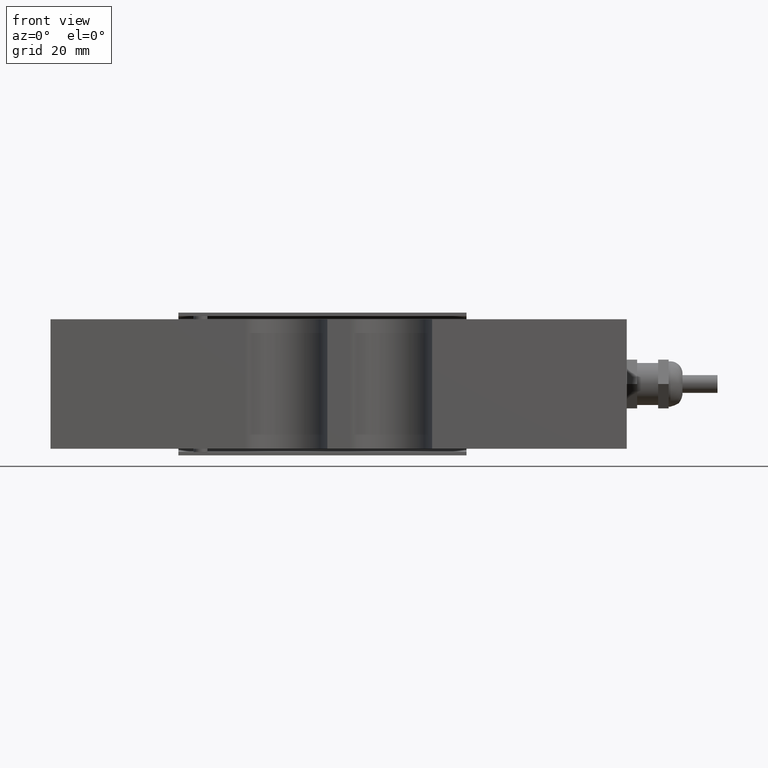
[diagram: clean part render]
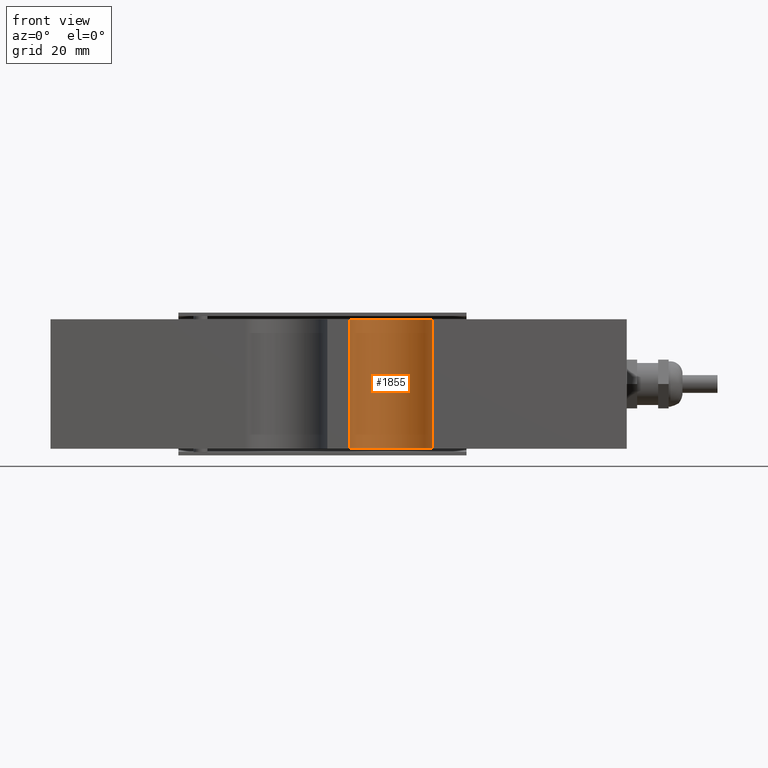
[diagram: same view with one face highlighted and labeled with its STEP entity id]
A machine part, front view. The second image highlights one B-rep face of the part: STEP entity #1855.
In plain terms, the highlighted cylindrical surface (partial cylindrical patch) has radius 12 mm, axis along (0, 0, 1).
Its self-contained STEP definition (entity closure, byte-faithful):
#231=FACE_OUTER_BOUND('',#349,.T.);
#349=EDGE_LOOP('',(#1538,#1539,#1540,#1541));
#496=LINE('',#4270,#652);
#497=LINE('',#4273,#653);
#652=VECTOR('',#2433,0.393700787401575);
#653=VECTOR('',#2436,0.393700787401575);
#760=CIRCLE('',#2032,0.47244094488189);
#761=CIRCLE('',#2033,0.47244094488189);
#900=VERTEX_POINT('',#4266);
#901=VERTEX_POINT('',#4267);
#902=VERTEX_POINT('',#4269);
#903=VERTEX_POINT('',#4271);
#1129=EDGE_CURVE('',#900,#901,#760,.T.);
#1130=EDGE_CURVE('',#902,#900,#496,.T.);
#1131=EDGE_CURVE('',#903,#902,#761,.T.);
#1132=EDGE_CURVE('',#901,#903,#497,.T.);
#1538=ORIENTED_EDGE('',*,*,#1129,.F.);
#1539=ORIENTED_EDGE('',*,*,#1130,.F.);
#1540=ORIENTED_EDGE('',*,*,#1131,.F.);
#1541=ORIENTED_EDGE('',*,*,#1132,.F.);
#1770=CYLINDRICAL_SURFACE('',#2031,0.47244094488189);
#1855=ADVANCED_FACE('',(#231),#1770,.F.);
#2031=AXIS2_PLACEMENT_3D('',#4265,#2429,#2430);
#2032=AXIS2_PLACEMENT_3D('',#4268,#2431,#2432);
#2033=AXIS2_PLACEMENT_3D('',#4272,#2434,#2435);
#2429=DIRECTION('center_axis',(0.,0.,1.));
#2430=DIRECTION('ref_axis',(1.,0.,0.));
#2431=DIRECTION('center_axis',(0.,0.,1.));
#2432=DIRECTION('ref_axis',(1.,0.,0.));
#2433=DIRECTION('',(0.,0.,-1.));
#2434=DIRECTION('center_axis',(0.,5.42601532534695E-16,-1.));
#2435=DIRECTION('ref_axis',(1.,0.,0.));
#2436=DIRECTION('',(0.,0.,1.));
#4265=CARTESIAN_POINT('Origin',(0.590551181102362,-1.53543307086614,0.));
#4266=CARTESIAN_POINT('',(1.05520334864629,-1.45,-0.73));
#4267=CARTESIAN_POINT('',(0.12589901355843,-1.45,-0.73));
#4268=CARTESIAN_POINT('Origin',(0.590551181102362,-1.53543307086614,-0.73));
#4269=CARTESIAN_POINT('',(1.05520334864629,-1.45,0.729999999999999));
#4270=CARTESIAN_POINT('',(1.05520334864629,-1.45,0.));
#4271=CARTESIAN_POINT('',(0.12589901355843,-1.45,0.729999999999999));
#4272=CARTESIAN_POINT('Origin',(0.590551181102362,-1.53543307086614,0.73));
#4273=CARTESIAN_POINT('',(0.12589901355843,-1.45,0.));